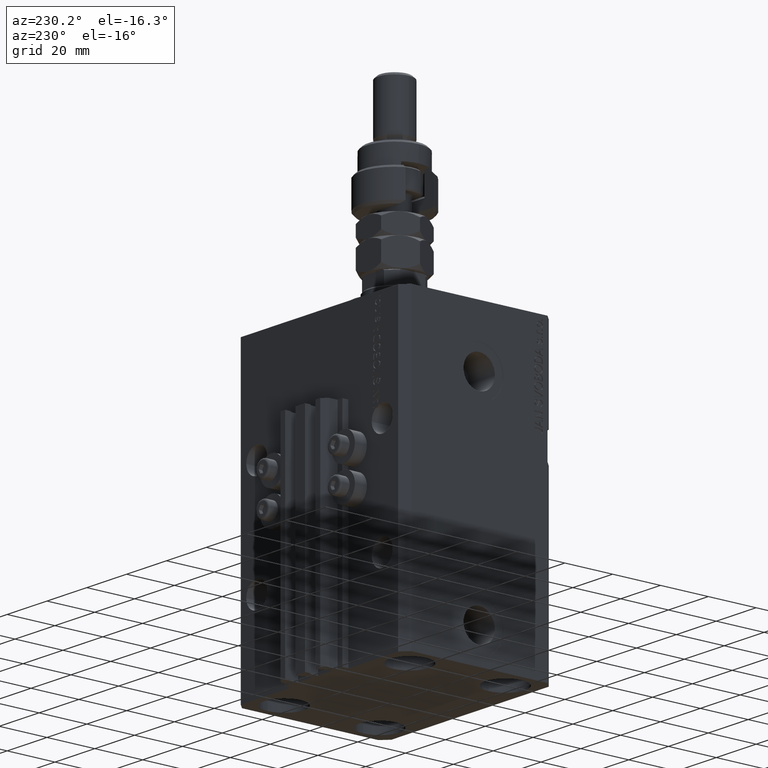
[diagram: clean part render]
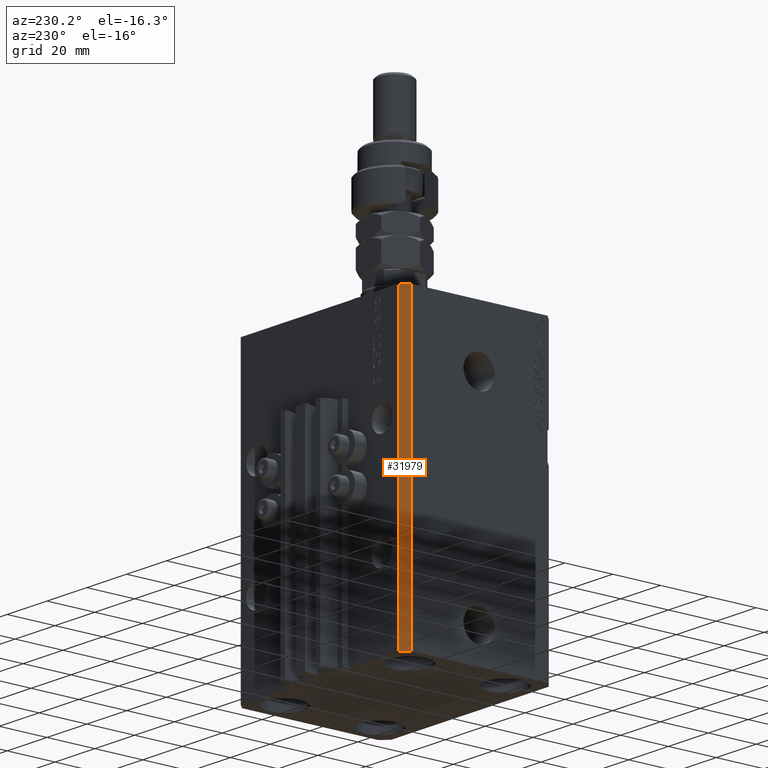
[diagram: same view with one face highlighted and labeled with its STEP entity id]
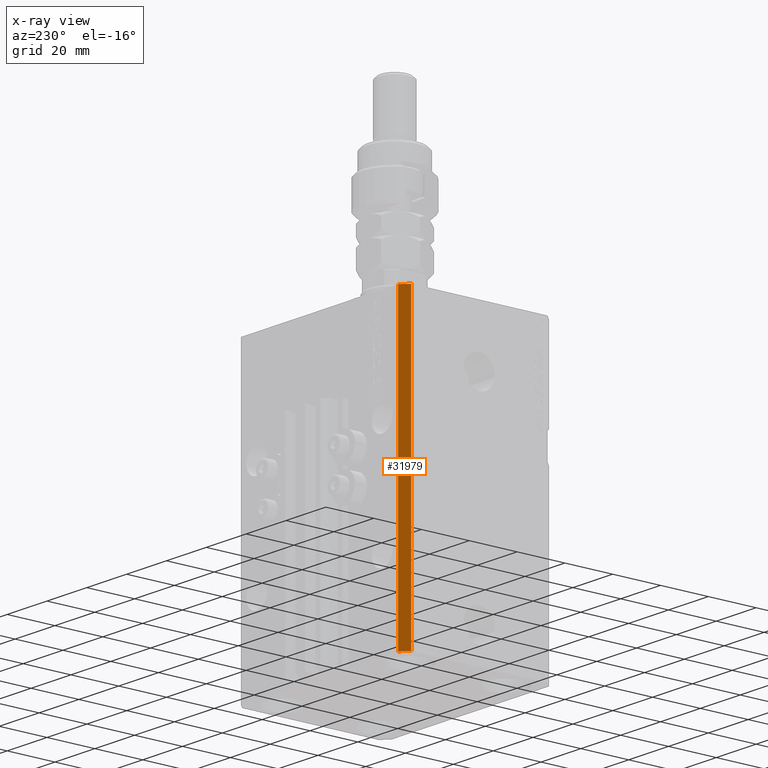
[diagram: x-ray of the same camera — body ghosted, the highlighted face saturated]
A machine part, auxiliary view. The second image highlights one B-rep face of the part: STEP entity #31979.
The next image is the same camera in x-ray: the body ghosted, the highlighted face saturated — about 0% of this face is hidden behind the body in this view.
In plain terms, the highlighted planar face has unit normal (-0.7071, 0.7071, 0).
Its self-contained STEP definition (entity closure, byte-faithful):
#308 = VECTOR ( 'NONE', #3465, 1000.000000000000000 ) ;
#450 = VERTEX_POINT ( 'NONE', #28939 ) ;
#3231 = EDGE_CURVE ( 'NONE', #31296, #450, #48947, .T. ) ;
#3465 = DIRECTION ( 'NONE',  ( 0.000000000000000000, 0.000000000000000000, 1.000000000000000000 ) ) ;
#3584 = CARTESIAN_POINT ( 'NONE',  ( -39.50000000000000711, 31.50000000000000000, -123.0000000000000000 ) ) ;
#3669 = EDGE_CURVE ( 'NONE', #42622, #450, #29751, .T. ) ;
#4768 = CARTESIAN_POINT ( 'NONE',  ( -39.50000000000000711, 31.50000000000000000, -123.0000000000000000 ) ) ;
#5738 = DIRECTION ( 'NONE',  ( 0.000000000000000000, 0.000000000000000000, 1.000000000000000000 ) ) ;
#5974 = EDGE_LOOP ( 'NONE', ( #6942, #14158, #39870, #16074 ) ) ;
#6878 = VECTOR ( 'NONE', #14172, 1000.000000000000000 ) ;
#6942 = ORIENTED_EDGE ( 'NONE', *, *, #3231, .F. ) ;
#8459 = DIRECTION ( 'NONE',  ( -0.7071067811865472397, -0.7071067811865479058, 0.000000000000000000 ) ) ;
#8769 = VERTEX_POINT ( 'NONE', #4768 ) ;
#13676 = CARTESIAN_POINT ( 'NONE',  ( -39.50000000000000711, 31.50000000000000000, 0.000000000000000000 ) ) ;
#14050 = VECTOR ( 'NONE', #34972, 1000.000000000000000 ) ;
#14158 = ORIENTED_EDGE ( 'NONE', *, *, #28034, .F. ) ;
#14172 = DIRECTION ( 'NONE',  ( -0.7071067811865471286, -0.7071067811865479058, 0.000000000000000000 ) ) ;
#16074 = ORIENTED_EDGE ( 'NONE', *, *, #3669, .T. ) ;
#16946 = CARTESIAN_POINT ( 'NONE',  ( -39.50000000000000711, 31.50000000000000000, -123.0000000000000000 ) ) ;
#17310 = LINE ( 'NONE', #25043, #46333 ) ;
#20793 = DIRECTION ( 'NONE',  ( -0.7071067811865479058, 0.7071067811865472397, 0.000000000000000000 ) ) ;
#25043 = CARTESIAN_POINT ( 'NONE',  ( -39.50000000000000711, 31.50000000000000000, -123.0000000000000000 ) ) ;
#28034 = EDGE_CURVE ( 'NONE', #8769, #31296, #17310, .T. ) ;
#28939 = CARTESIAN_POINT ( 'NONE',  ( -42.50000000000000000, 28.50000000000000000, 0.000000000000000000 ) ) ;
#29751 = LINE ( 'NONE', #31266, #308 ) ;
#30320 = CARTESIAN_POINT ( 'NONE',  ( -39.50000000000000711, 31.50000000000000000, 0.000000000000000000 ) ) ;
#31266 = CARTESIAN_POINT ( 'NONE',  ( -42.50000000000000000, 28.50000000000000000, -123.0000000000000000 ) ) ;
#31296 = VERTEX_POINT ( 'NONE', #30320 ) ;
#31979 = ADVANCED_FACE ( 'NONE', ( #44481 ), #35735, .T. ) ;
#34972 = DIRECTION ( 'NONE',  ( -0.7071067811865471286, -0.7071067811865479058, 0.000000000000000000 ) ) ;
#35735 = PLANE ( 'NONE',  #38922 ) ;
#38922 = AXIS2_PLACEMENT_3D ( 'NONE', #16946, #20793, #8459 ) ;
#39870 = ORIENTED_EDGE ( 'NONE', *, *, #43820, .T. ) ;
#42622 = VERTEX_POINT ( 'NONE', #44271 ) ;
#42703 = LINE ( 'NONE', #3584, #14050 ) ;
#43820 = EDGE_CURVE ( 'NONE', #8769, #42622, #42703, .T. ) ;
#44271 = CARTESIAN_POINT ( 'NONE',  ( -42.50000000000000000, 28.50000000000000000, -123.0000000000000000 ) ) ;
#44481 = FACE_OUTER_BOUND ( 'NONE', #5974, .T. ) ;
#46333 = VECTOR ( 'NONE', #5738, 1000.000000000000000 ) ;
#48947 = LINE ( 'NONE', #13676, #6878 ) ;